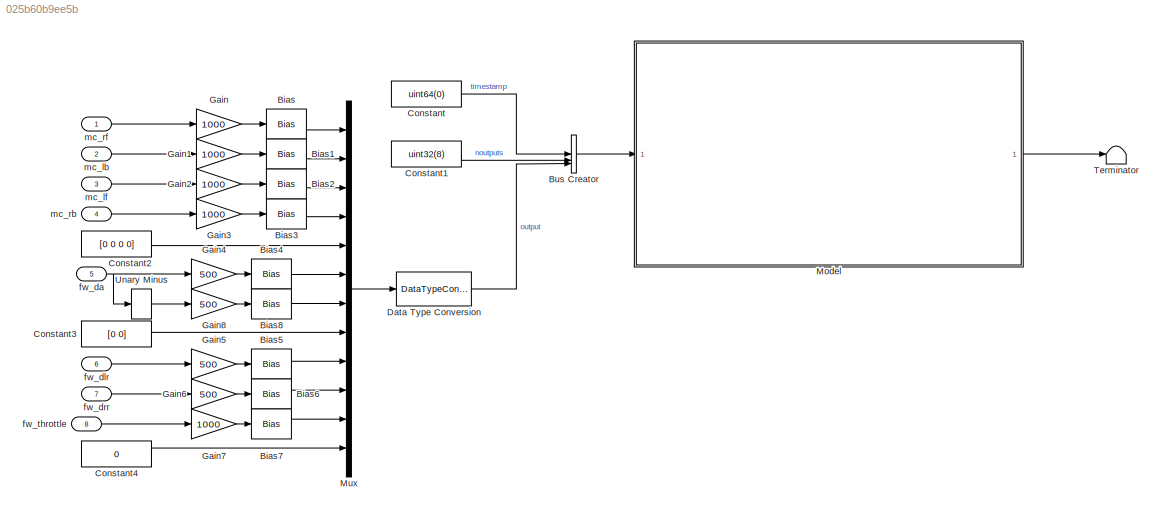
MODEL slx_025b60b9ee5b
KIND model
CONFIG AbsTol = auto
CONFIG EnableMultiTasking = off
CONFIG FixedStep = 5/1000
CONFIG MaxStep = auto
CONFIG MinStep = auto
CONFIG RelTol = 1e-3
CONFIG SampleTimeConstraint = Unconstrained
CONFIG SolverName = FixedStepAuto
CONFIG StartTime = 0.0
CONFIG StopTime = 10
BLOCK [Bias] Bias
  Bias = 1000
  SaturateOnIntegerOverflow = off
BLOCK [Bias] Bias1
  Bias = 1000
  SaturateOnIntegerOverflow = off
BLOCK [Bias] Bias2
  Bias = 1000
  SaturateOnIntegerOverflow = off
BLOCK [Bias] Bias3
  Bias = 1000
  SaturateOnIntegerOverflow = off
BLOCK [Bias] Bias4
  Bias = 1500
  SaturateOnIntegerOverflow = off
BLOCK [Bias] Bias5
  Bias = 1500
  SaturateOnIntegerOverflow = off
BLOCK [Bias] Bias6
  Bias = 1500
  SaturateOnIntegerOverflow = off
BLOCK [Bias] Bias7
  Bias = 1000
  SaturateOnIntegerOverflow = off
BLOCK [Bias] Bias8
  Bias = 1500
  SaturateOnIntegerOverflow = off
BLOCK [BusCreator] Bus Creator
  DisplayOption = bar
  InheritFromInputs = on
  Inputs = 3
BLOCK [Constant] Constant
  Value = uint64(0)
BLOCK [Constant] Constant1
  Value = uint32(8)
BLOCK [Constant] Constant2
  Value = [0 0 0 0]
BLOCK [Constant] Constant3
  Value = [0 0]
BLOCK [Constant] Constant4
  Value = 0
BLOCK [DataTypeConversion] Data Type Conversion
  OutDataTypeStr = single
  RndMeth = Floor
  SaturateOnIntegerOverflow = off
BLOCK [Gain] Gain
  Gain = 1000
BLOCK [Gain] Gain1
  Gain = 1000
BLOCK [Gain] Gain2
  Gain = 1000
BLOCK [Gain] Gain3
  Gain = 1000
BLOCK [Gain] Gain4
  Gain = 500
BLOCK [Gain] Gain5
  Gain = 500
BLOCK [Gain] Gain6
  Gain = 500
BLOCK [Gain] Gain7
  Gain = 1000
BLOCK [Gain] Gain8
  Gain = 500
BLOCK [ModelReference] Model
  ModelNameDialog = vtol50kg_airframe.slx
  ModelReferenceVersion = 5.219
BLOCK [Mux] Mux
  DisplayOption = bar
  Inputs = 12
BLOCK [Terminator] Terminator
BLOCK [UnaryMinus] Unary Minus
BLOCK [Inport] fw_da
  NameLocation = left
  OutDataTypeStr = double
  OutMax = 1
  OutMin = -1
  Port = 5
BLOCK [Inport] fw_dlr
  NameLocation = left
  OutDataTypeStr = double
  OutMax = 1
  OutMin = -1
  Port = 6
BLOCK [Inport] fw_drr
  NameLocation = left
  OutDataTypeStr = double
  OutMax = 1
  OutMin = -1
  Port = 7
BLOCK [Inport] fw_throttle
  NameLocation = left
  OutDataTypeStr = double
  OutMax = 1
  OutMin = 0
  Port = 8
BLOCK [Inport] mc_lb
  NameLocation = left
  OutDataTypeStr = double
  OutMax = 1
  OutMin = 0
  Port = 2
BLOCK [Inport] mc_lf
  NameLocation = left
  OutDataTypeStr = double
  OutMax = 1
  OutMin = 0
  Port = 3
BLOCK [Inport] mc_rb
  NameLocation = left
  OutDataTypeStr = double
  OutMax = 1
  OutMin = 0
  Port = 4
BLOCK [Inport] mc_rf
  NameLocation = left
  OutDataTypeStr = double
  OutMax = 1
  OutMin = 0
LINE Bias1:1 -> Mux:2
LINE Bias2:1 -> Mux:3
LINE Bias3:1 -> Mux:4
LINE Bias4:1 -> Mux:6
LINE Bias5:1 -> Mux:9
LINE Bias6:1 -> Mux:10
LINE Bias7:1 -> Mux:11
LINE Bias8:1 -> Mux:7
LINE Bias:1 -> Mux:1
LINE Bus Creator:1 -> Model:1
LINE Constant1:1 -> Bus Creator:2
LINE Constant2:1 -> Mux:5
LINE Constant3:1 -> Mux:8
LINE Constant4:1 -> Mux:12
LINE Constant:1 -> Bus Creator:1
LINE Data Type Conversion:1 -> Bus Creator:3
LINE Gain1:1 -> Bias1:1
LINE Gain2:1 -> Bias2:1
LINE Gain3:1 -> Bias3:1
LINE Gain4:1 -> Bias4:1
LINE Gain5:1 -> Bias5:1
LINE Gain6:1 -> Bias6:1
LINE Gain7:1 -> Bias7:1
LINE Gain8:1 -> Bias8:1
LINE Gain:1 -> Bias:1
LINE Model:1 -> Terminator:1
LINE Mux:1 -> Data Type Conversion:1
LINE Unary Minus:1 -> Gain8:1
NET fw_da:1 -> Gain4:1, Unary Minus:1
LINE fw_dlr:1 -> Gain5:1
LINE fw_drr:1 -> Gain6:1
LINE fw_throttle:1 -> Gain7:1
LINE mc_lb:1 -> Gain1:1
LINE mc_lf:1 -> Gain2:1
LINE mc_rb:1 -> Gain3:1
LINE mc_rf:1 -> Gain:1
note: NET lines group one-source signal fan-out (src -> all destinations, sorted); 1:1 wires keep LINE
